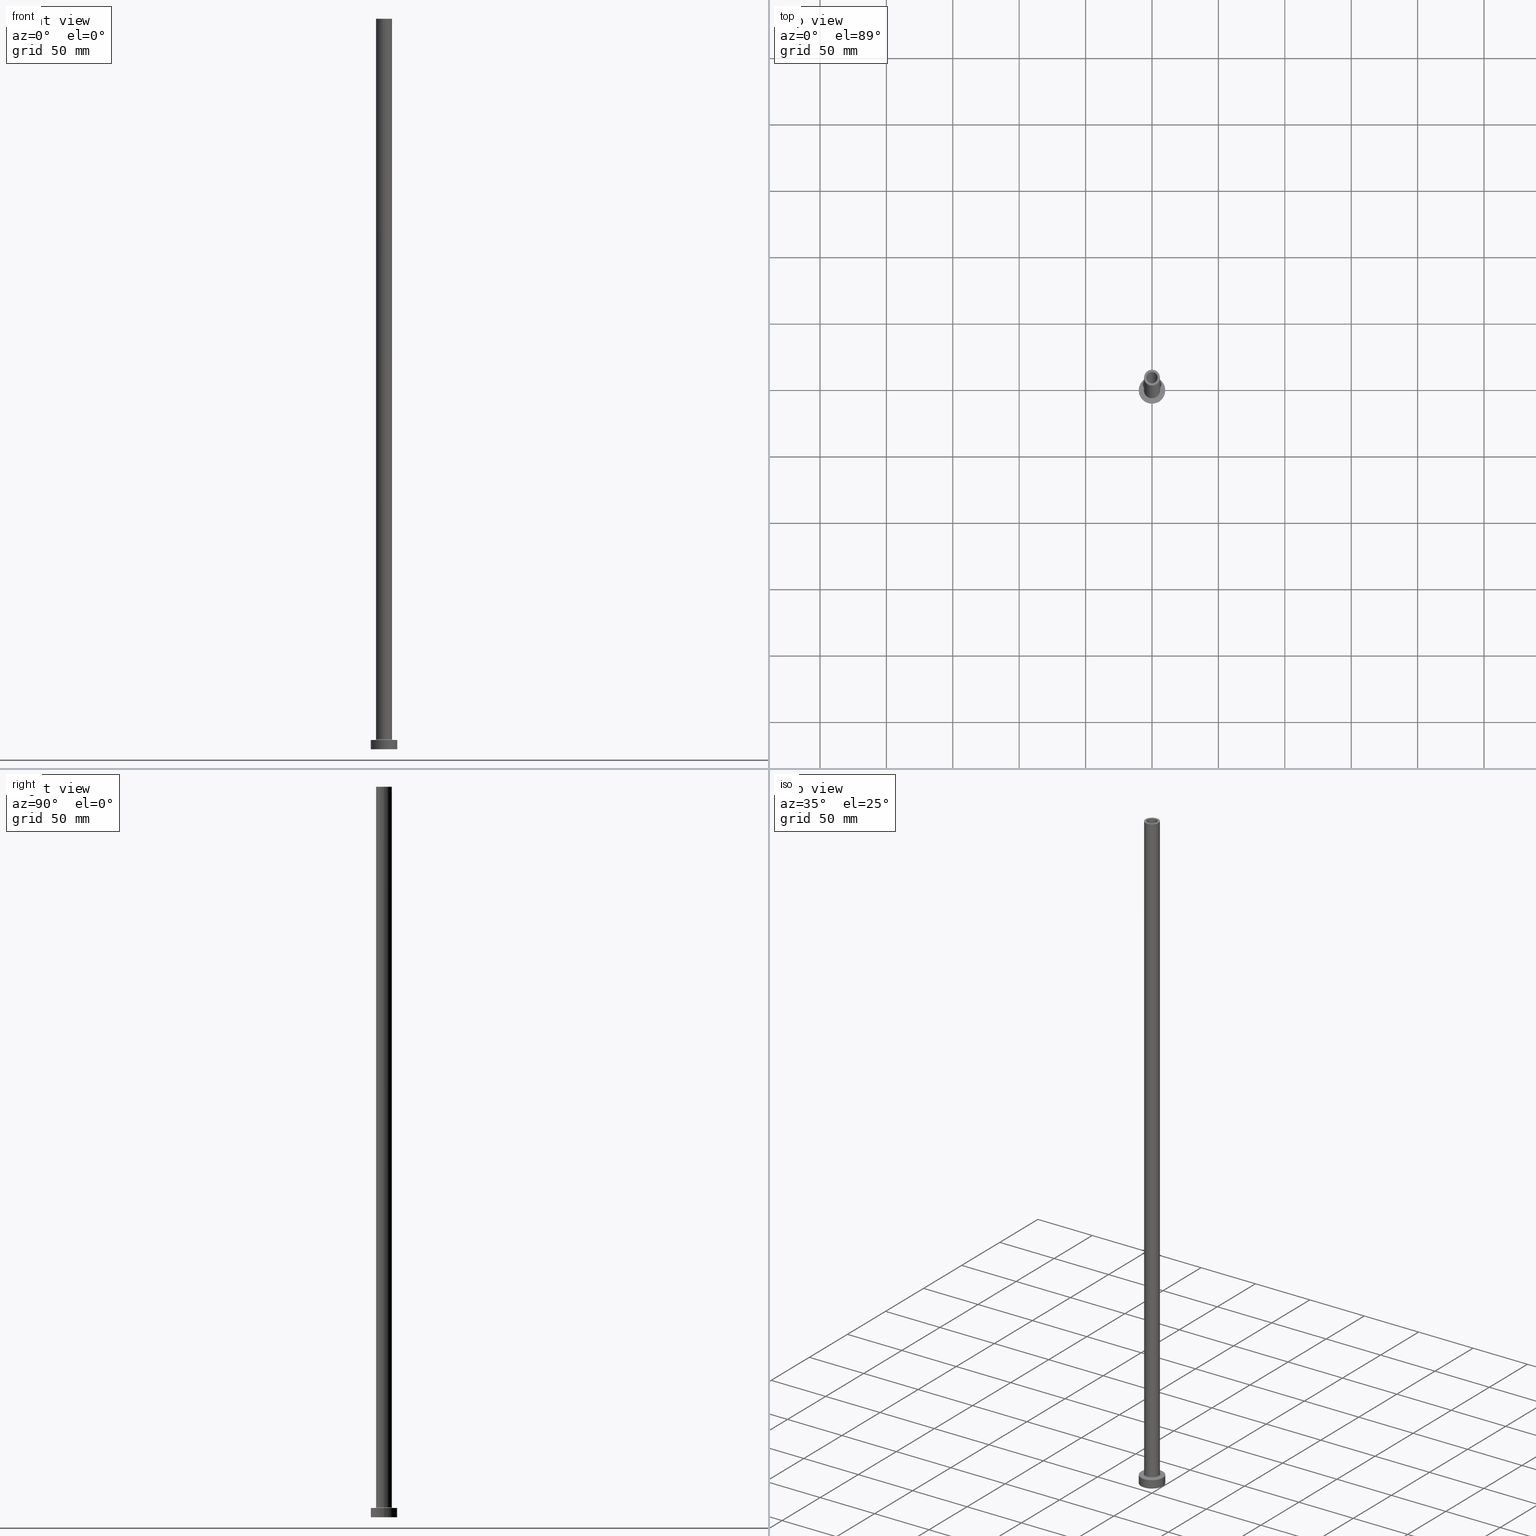
[diagram: canonical four-view strip — front | top / right | iso, engineering-drawing reading convention]
A machine part, canonical four-view strip (front | top / right | iso — engineering-drawing reading convention). The complete STEP part file that produces these views, byte-faithful:
ISO-10303-21;
HEADER;
FILE_DESCRIPTION (( 'STEP AP203' ),
    '1' );
FILE_NAME ('d354.STEP',
    '2023-02-13T11:55:29',
    ( '' ),
    ( '' ),
    'SwSTEP 2.0',
    'SolidWorks 2019',
    '' );
FILE_SCHEMA (( 'CONFIG_CONTROL_DESIGN' ));
ENDSEC;

DATA;
#1 = PRODUCT ( 'd354', 'd354', '', ( #40 ) ) ;
#2 = DIRECTION ( 'NONE',  ( -0.000000000000000000, -0.000000000000000000, -1.000000000000000000 ) ) ;
#3 = EDGE_LOOP ( 'NONE', ( #135, #392 ) ) ;
#4 = CARTESIAN_POINT ( 'NONE',  ( 0.000000000000000000, 0.000000000000000000, 517.4450793488832687 ) ) ;
#5 = CIRCLE ( 'NONE', #401, 4.400000000000000355 ) ;
#6 = EDGE_CURVE ( 'NONE', #89, #350, #354, .T. ) ;
#7 = CIRCLE ( 'NONE', #260, 4.400000000000000355 ) ;
#8 = AXIS2_PLACEMENT_3D ( 'NONE', #66, #104, #270 ) ;
#9 = FACE_BOUND ( 'NONE', #39, .T. ) ;
#10 = CC_DESIGN_PERSON_AND_ORGANIZATION_ASSIGNMENT ( #185, #429, ( #396 ) ) ;
#11 = CALENDAR_DATE ( 2023, 13, 2 ) ;
#12 = DIRECTION ( 'NONE',  ( 0.000000000000000000, 0.000000000000000000, 1.000000000000000000 ) ) ;
#13 = PERSON_AND_ORGANIZATION_ROLE ( 'creator' ) ;
#14 = CARTESIAN_POINT ( 'NONE',  ( -4.400000000000000355, 0.000000000000000000, 517.4450793488832687 ) ) ;
#15 = EDGE_CURVE ( 'NONE', #414, #35, #286, .T. ) ;
#16 = APPLICATION_CONTEXT ( 'configuration controlled 3d designs of mechanical parts and assemblies' ) ;
#17 = DIRECTION ( 'NONE',  ( 0.000000000000000000, 0.000000000000000000, -1.000000000000000000 ) ) ;
#18 = CARTESIAN_POINT ( 'NONE',  ( -4.400000000000000355, 0.000000000000000000, 0.000000000000000000 ) ) ;
#19 = PLANE ( 'NONE',  #349 ) ;
#20 = ADVANCED_FACE ( 'NONE', ( #323 ), #171, .F. ) ;
#21 = DIRECTION ( 'NONE',  ( 0.000000000000000000, 0.000000000000000000, 1.000000000000000000 ) ) ;
#22 = AXIS2_PLACEMENT_3D ( 'NONE', #454, #2, #420 ) ;
#23 = DIRECTION ( 'NONE',  ( 1.000000000000000000, 0.000000000000000000, 0.000000000000000000 ) ) ;
#24 = ORIENTED_EDGE ( 'NONE', *, *, #221, .T. ) ;
#25 = CARTESIAN_POINT ( 'NONE',  ( -4.250000000000000000, 0.000000000000000000, 550.0000000000000000 ) ) ;
#26 = AXIS2_PLACEMENT_3D ( 'NONE', #46, #184, #80 ) ;
#27 = DIRECTION ( 'NONE',  ( 0.000000000000000000, 0.000000000000000000, 1.000000000000000000 ) ) ;
#28 = CIRCLE ( 'NONE', #444, 10.00000000000000000 ) ;
#29 = DIRECTION ( 'NONE',  ( 0.000000000000000000, 0.000000000000000000, 1.000000000000000000 ) ) ;
#30 = EDGE_LOOP ( 'NONE', ( #176, #76, #412, #443 ) ) ;
#31 = CYLINDRICAL_SURFACE ( 'NONE', #261, 4.400000000000000355 ) ;
#32 = VERTEX_POINT ( 'NONE', #283 ) ;
#33 = ADVANCED_FACE ( 'NONE', ( #246 ), #250, .T. ) ;
#34 = LINE ( 'NONE', #232, #205 ) ;
#35 = VERTEX_POINT ( 'NONE', #48 ) ;
#36 = CARTESIAN_POINT ( 'NONE',  ( -4.250000000000000000, 0.000000000000000000, 505.0000000000000000 ) ) ;
#37 = VERTEX_POINT ( 'NONE', #248 ) ;
#38 = DATE_AND_TIME ( #285, #459 ) ;
#39 = EDGE_LOOP ( 'NONE', ( #385, #446 ) ) ;
#40 = MECHANICAL_CONTEXT ( 'NONE', #16, 'mechanical' ) ;
#41 = CIRCLE ( 'NONE', #158, 10.00000000000000000 ) ;
#42 = ORIENTED_EDGE ( 'NONE', *, *, #405, .T. ) ;
#43 = AXIS2_PLACEMENT_3D ( 'NONE', #110, #115, #222 ) ;
#44 = APPROVAL_STATUS ( 'not_yet_approved' ) ;
#45 = FACE_OUTER_BOUND ( 'NONE', #209, .T. ) ;
#46 = CARTESIAN_POINT ( 'NONE',  ( -6.700000000000001066, 8.205133554287267548E-16, 7.700000000000040146 ) ) ;
#47 = SHAPE_DEFINITION_REPRESENTATION ( #51, #332 ) ;
#48 = CARTESIAN_POINT ( 'NONE',  ( 4.250000000000000000, 5.204748896376250699E-16, 505.0000000000000000 ) ) ;
#49 = DIRECTION ( 'NONE',  ( 1.000000000000000000, 0.000000000000000000, -0.000000000000000000 ) ) ;
#50 = CARTESIAN_POINT ( 'NONE',  ( 6.000000000000000888, 7.347880794884120722E-16, 550.0000000000000000 ) ) ;
#51 = PRODUCT_DEFINITION_SHAPE ( 'NONE', 'NONE',  #422 ) ;
#52 = DIRECTION ( 'NONE',  ( 1.000000000000000000, 0.000000000000000000, 0.000000000000000000 ) ) ;
#53 = DIRECTION ( 'NONE',  ( 0.000000000000000000, 0.000000000000000000, 1.000000000000000000 ) ) ;
#54 = LOCAL_TIME ( 12, 55, 29.00000000000000000, #289 ) ;
#55 = EDGE_CURVE ( 'NONE', #151, #233, #430, .T. ) ;
#56 = CARTESIAN_POINT ( 'NONE',  ( -10.00000000000000000, 0.000000000000000000, 7.000000000000000000 ) ) ;
#57 = CARTESIAN_POINT ( 'NONE',  ( 0.000000000000000000, 0.000000000000000000, 0.000000000000000000 ) ) ;
#58 = DIRECTION ( 'NONE',  ( -0.000000000000000000, -0.000000000000000000, -1.000000000000000000 ) ) ;
#59 = ORIENTED_EDGE ( 'NONE', *, *, #103, .F. ) ;
#60 = CIRCLE ( 'NONE', #119, 4.250000000000000000 ) ;
#61 = LINE ( 'NONE', #417, #284 ) ;
#62 = ORIENTED_EDGE ( 'NONE', *, *, #347, .F. ) ;
#63 = ADVANCED_FACE ( 'NONE', ( #357 ), #439, .T. ) ;
#64 = CARTESIAN_POINT ( 'NONE',  ( 6.000000000000000888, 7.347880794884120722E-16, 550.0000000000000000 ) ) ;
#65 = ORIENTED_EDGE ( 'NONE', *, *, #15, .F. ) ;
#66 = CARTESIAN_POINT ( 'NONE',  ( 6.700000000000001066, 0.000000000000000000, 7.700000000000040146 ) ) ;
#67 = ORIENTED_EDGE ( 'NONE', *, *, #55, .F. ) ;
#68 = AXIS2_PLACEMENT_3D ( 'NONE', #365, #447, #88 ) ;
#69 = VECTOR ( 'NONE', #277, 1000.000000000000000 ) ;
#70 = DATE_TIME_ROLE ( 'classification_date' ) ;
#71 = VERTEX_POINT ( 'NONE', #363 ) ;
#72 = DIRECTION ( 'NONE',  ( 0.000000000000000000, 0.000000000000000000, 1.000000000000000000 ) ) ;
#73 = CALENDAR_DATE ( 2023, 13, 2 ) ;
#74 = DATE_AND_TIME ( #358, #333 ) ;
#75 = AXIS2_PLACEMENT_3D ( 'NONE', #228, #335, #293 ) ;
#76 = ORIENTED_EDGE ( 'NONE', *, *, #6, .T. ) ;
#77 = EDGE_CURVE ( 'NONE', #295, #350, #258, .T. ) ;
#78 = DATE_AND_TIME ( #11, #310 ) ;
#79 = DIRECTION ( 'NONE',  ( 1.000000000000000000, 0.000000000000000000, 0.000000000000000000 ) ) ;
#80 = DIRECTION ( 'NONE',  ( -1.000000000000000000, 1.224646799147353454E-16, 0.000000000000000000 ) ) ;
#81 = DIRECTION ( 'NONE',  ( 0.000000000000000000, 0.000000000000000000, 1.000000000000000000 ) ) ;
#82 = AXIS2_PLACEMENT_3D ( 'NONE', #375, #202, #338 ) ;
#83 = APPROVAL ( #217, 'NEUR�EN�' ) ;
#84 = CARTESIAN_POINT ( 'NONE',  ( 0.000000000000000000, 0.000000000000000000, 0.000000000000000000 ) ) ;
#85 = DIRECTION ( 'NONE',  ( 1.000000000000000000, 0.000000000000000000, 0.000000000000000000 ) ) ;
#86 = EDGE_CURVE ( 'NONE', #435, #233, #5, .T. ) ;
#87 = VECTOR ( 'NONE', #183, 1000.000000000000000 ) ;
#88 = DIRECTION ( 'NONE',  ( 1.000000000000000000, 0.000000000000000000, -0.000000000000000000 ) ) ;
#89 = VERTEX_POINT ( 'NONE', #389 ) ;
#90 = CIRCLE ( 'NONE', #415, 4.250000000000000000 ) ;
#91 = ADVANCED_FACE ( 'NONE', ( #9, #45 ), #321, .F. ) ;
#92 = CARTESIAN_POINT ( 'NONE',  ( -4.400000000000000355, 0.000000000000000000, 505.0000000000000000 ) ) ;
#93 =( LENGTH_UNIT ( ) NAMED_UNIT ( * ) SI_UNIT ( .MILLI., .METRE. ) );
#94 = EDGE_LOOP ( 'NONE', ( #197, #421, #42, #236 ) ) ;
#95 = ADVANCED_FACE ( 'NONE', ( #218 ), #361, .F. ) ;
#96 = FACE_OUTER_BOUND ( 'NONE', #309, .T. ) ;
#97 = EDGE_LOOP ( 'NONE', ( #100, #141 ) ) ;
#98 = AXIS2_PLACEMENT_3D ( 'NONE', #238, #308, #382 ) ;
#99 = CYLINDRICAL_SURFACE ( 'NONE', #82, 10.00000000000000000 ) ;
#100 = ORIENTED_EDGE ( 'NONE', *, *, #244, .F. ) ;
#101 = CARTESIAN_POINT ( 'NONE',  ( 0.000000000000000000, 0.000000000000000000, 0.000000000000000000 ) ) ;
#102 = ORIENTED_EDGE ( 'NONE', *, *, #362, .T. ) ;
#103 = EDGE_CURVE ( 'NONE', #304, #71, #41, .T. ) ;
#104 = DIRECTION ( 'NONE',  ( 0.000000000000000000, -1.000000000000000000, 0.000000000000000000 ) ) ;
#105 = ORIENTED_EDGE ( 'NONE', *, *, #395, .F. ) ;
#106 = EDGE_CURVE ( 'NONE', #339, #35, #90, .T. ) ;
#107 = DATE_AND_TIME ( #287, #139 ) ;
#108 = ORIENTED_EDGE ( 'NONE', *, *, #370, .T. ) ;
#109 = PERSON_AND_ORGANIZATION ( #152, #379 ) ;
#110 = CARTESIAN_POINT ( 'NONE',  ( 0.000000000000000000, 0.000000000000000000, 7.000000000000000000 ) ) ;
#111 = CARTESIAN_POINT ( 'NONE',  ( 0.000000000000000000, 0.000000000000000000, 0.000000000000000000 ) ) ;
#112 = CARTESIAN_POINT ( 'NONE',  ( 0.000000000000000000, 0.000000000000000000, 505.0000000000000000 ) ) ;
#113 = APPROVAL_ROLE ( '' ) ;
#114 = CC_DESIGN_APPROVAL ( #296, ( #253 ) ) ;
#115 = DIRECTION ( 'NONE',  ( -0.000000000000000000, -0.000000000000000000, -1.000000000000000000 ) ) ;
#116 = APPLICATION_PROTOCOL_DEFINITION ( 'international standard', 'config_control_design', 1994, #16 ) ;
#117 = CARTESIAN_POINT ( 'NONE',  ( 0.000000000000000000, 0.000000000000000000, 0.000000000000000000 ) ) ;
#118 = PLANE ( 'NONE',  #68 ) ;
#119 = AXIS2_PLACEMENT_3D ( 'NONE', #224, #263, #85 ) ;
#120 = PLANE ( 'NONE',  #449 ) ;
#121 = TOROIDAL_SURFACE ( 'NONE', #427, 6.700000000000001066, 0.6999999999999999556 ) ;
#122 = CARTESIAN_POINT ( 'NONE',  ( 0.000000000000000000, 0.000000000000000000, 550.0000000000000000 ) ) ;
#123 = ORIENTED_EDGE ( 'NONE', *, *, #172, .T. ) ;
#124 = DIRECTION ( 'NONE',  ( 1.000000000000000000, 0.000000000000000000, 0.000000000000000000 ) ) ;
#125 = CC_DESIGN_PERSON_AND_ORGANIZATION_ASSIGNMENT ( #315, #352, ( #1 ) ) ;
#126 = ORIENTED_EDGE ( 'NONE', *, *, #77, .T. ) ;
#127 = CYLINDRICAL_SURFACE ( 'NONE', #166, 10.00000000000000000 ) ;
#128 = AXIS2_PLACEMENT_3D ( 'NONE', #57, #193, #124 ) ;
#129 = AXIS2_PLACEMENT_3D ( 'NONE', #111, #426, #245 ) ;
#130 = CIRCLE ( 'NONE', #8, 0.7000000000000000666 ) ;
#131 = LINE ( 'NONE', #64, #269 ) ;
#132 = VERTEX_POINT ( 'NONE', #353 ) ;
#133 = ADVANCED_FACE ( 'NONE', ( #179, #230 ), #118, .T. ) ;
#134 = DIRECTION ( 'NONE',  ( -0.000000000000000000, -0.000000000000000000, -1.000000000000000000 ) ) ;
#135 = ORIENTED_EDGE ( 'NONE', *, *, #165, .T. ) ;
#136 = PRODUCT_RELATED_PRODUCT_CATEGORY ( 'detail', '', ( #1 ) ) ;
#137 = FACE_OUTER_BOUND ( 'NONE', #143, .T. ) ;
#138 = ORIENTED_EDGE ( 'NONE', *, *, #244, .T. ) ;
#139 = LOCAL_TIME ( 12, 55, 29.00000000000000000, #148 ) ;
#140 = CARTESIAN_POINT ( 'NONE',  ( 4.400000000000000355, 5.388445916248354013E-16, 517.4450793488832687 ) ) ;
#141 = ORIENTED_EDGE ( 'NONE', *, *, #86, .F. ) ;
#142 = DIRECTION ( 'NONE',  ( 1.000000000000000000, 0.000000000000000000, 0.000000000000000000 ) ) ;
#143 = EDGE_LOOP ( 'NONE', ( #400, #190, #455, #206 ) ) ;
#144 = AXIS2_PLACEMENT_3D ( 'NONE', #432, #188, #292 ) ;
#145 = DIRECTION ( 'NONE',  ( 0.000000000000000000, 0.000000000000000000, 1.000000000000000000 ) ) ;
#146 = VECTOR ( 'NONE', #441, 1000.000000000000000 ) ;
#147 = CIRCLE ( 'NONE', #327, 4.250000000000000000 ) ;
#148 = COORDINATED_UNIVERSAL_TIME_OFFSET ( 1, 0, .AHEAD. ) ;
#149 = CARTESIAN_POINT ( 'NONE',  ( 0.000000000000000000, 0.000000000000000000, 0.000000000000000000 ) ) ;
#150 = APPROVAL_DATE_TIME ( #78, #296 ) ;
#151 = VERTEX_POINT ( 'NONE', #92 ) ;
#152 = PERSON ( 'NEUR�EN�', 'NEUR�EN�', 'NEUR�EN�', ('NEUR�EN�'), ('NEUR�EN�'), ('NEUR�EN�') ) ;
#153 = DATE_TIME_ROLE ( 'creation_date' ) ;
#154 = DIRECTION ( 'NONE',  ( -0.000000000000000000, -0.000000000000000000, -1.000000000000000000 ) ) ;
#155 = AXIS2_PLACEMENT_3D ( 'NONE', #442, #226, #23 ) ;
#156 = DIRECTION ( 'NONE',  ( -1.000000000000000000, 0.000000000000000000, 0.000000000000000000 ) ) ;
#157 = FACE_OUTER_BOUND ( 'NONE', #3, .T. ) ;
#158 = AXIS2_PLACEMENT_3D ( 'NONE', #117, #145, #257 ) ;
#159 = DIRECTION ( 'NONE',  ( 1.000000000000000000, 0.000000000000000000, -0.000000000000000000 ) ) ;
#160 = VECTOR ( 'NONE', #213, 1000.000000000000000 ) ;
#161 = CARTESIAN_POINT ( 'NONE',  ( -4.250000000000000000, 0.000000000000000000, 550.0000000000000000 ) ) ;
#162 = CARTESIAN_POINT ( 'NONE',  ( 0.000000000000000000, 0.000000000000000000, 550.0000000000000000 ) ) ;
#163 = CARTESIAN_POINT ( 'NONE',  ( 6.700000000000001066, 0.000000000000000000, 7.000000000000020428 ) ) ;
#164 = FACE_OUTER_BOUND ( 'NONE', #30, .T. ) ;
#165 = EDGE_CURVE ( 'NONE', #132, #312, #456, .T. ) ;
#166 = AXIS2_PLACEMENT_3D ( 'NONE', #410, #191, #331 ) ;
#167 = DIRECTION ( 'NONE',  ( -0.000000000000000000, -0.000000000000000000, -1.000000000000000000 ) ) ;
#168 = VERTEX_POINT ( 'NONE', #56 ) ;
#169 = CARTESIAN_POINT ( 'NONE',  ( 0.000000000000000000, 0.000000000000000000, 7.000000000000000000 ) ) ;
#170 = ORIENTED_EDGE ( 'NONE', *, *, #457, .T. ) ;
#171 = TOROIDAL_SURFACE ( 'NONE', #433, 6.700000000000001066, 0.6999999999999999556 ) ;
#172 = EDGE_CURVE ( 'NONE', #168, #381, #252, .T. ) ;
#173 = LINE ( 'NONE', #411, #237 ) ;
#174 = ORIENTED_EDGE ( 'NONE', *, *, #436, .F. ) ;
#175 = CARTESIAN_POINT ( 'NONE',  ( 0.000000000000000000, 0.000000000000000000, 517.4450793488832687 ) ) ;
#176 = ORIENTED_EDGE ( 'NONE', *, *, #219, .F. ) ;
#177 =( NAMED_UNIT ( * ) SI_UNIT ( $, .STERADIAN. ) SOLID_ANGLE_UNIT ( ) );
#178 = ORIENTED_EDGE ( 'NONE', *, *, #319, .F. ) ;
#179 = FACE_BOUND ( 'NONE', #316, .T. ) ;
#180 = CIRCLE ( 'NONE', #223, 4.400000000000000355 ) ;
#181 = APPROVAL_PERSON_ORGANIZATION ( #282, #296, #320 ) ;
#182 = APPLICATION_PROTOCOL_DEFINITION ( 'international standard', 'config_control_design', 1994, #348 ) ;
#183 = DIRECTION ( 'NONE',  ( 0.000000000000000000, 0.000000000000000000, -1.000000000000000000 ) ) ;
#184 = DIRECTION ( 'NONE',  ( 1.224646799147353207E-16, 1.000000000000000000, -0.000000000000000000 ) ) ;
#185 = PERSON_AND_ORGANIZATION ( #152, #379 ) ;
#186 = CARTESIAN_POINT ( 'NONE',  ( 4.250000000000000000, 5.204748896376250699E-16, 550.0000000000000000 ) ) ;
#187 = CC_DESIGN_APPROVAL ( #255, ( #422 ) ) ;
#188 = DIRECTION ( 'NONE',  ( -0.000000000000000000, -0.000000000000000000, -1.000000000000000000 ) ) ;
#189 = CARTESIAN_POINT ( 'NONE',  ( 0.000000000000000000, 0.000000000000000000, 505.0000000000000000 ) ) ;
#190 = ORIENTED_EDGE ( 'NONE', *, *, #15, .T. ) ;
#191 = DIRECTION ( 'NONE',  ( -0.000000000000000000, -0.000000000000000000, -1.000000000000000000 ) ) ;
#192 = ADVANCED_FACE ( 'NONE', ( #196, #157 ), #19, .T. ) ;
#193 = DIRECTION ( 'NONE',  ( -0.000000000000000000, -0.000000000000000000, -1.000000000000000000 ) ) ;
#194 = APPROVAL_PERSON_ORGANIZATION ( #215, #83, #113 ) ;
#195 = ORIENTED_EDGE ( 'NONE', *, *, #300, .T. ) ;
#196 = FACE_BOUND ( 'NONE', #210, .T. ) ;
#197 = ORIENTED_EDGE ( 'NONE', *, *, #198, .F. ) ;
#198 = EDGE_CURVE ( 'NONE', #312, #132, #337, .T. ) ;
#199 = DIRECTION ( 'NONE',  ( 0.000000000000000000, 0.000000000000000000, -1.000000000000000000 ) ) ;
#200 = AXIS2_PLACEMENT_3D ( 'NONE', #4, #17, #156 ) ;
#201 = CC_DESIGN_PERSON_AND_ORGANIZATION_ASSIGNMENT ( #393, #398, ( #253 ) ) ;
#202 = DIRECTION ( 'NONE',  ( -0.000000000000000000, -0.000000000000000000, -1.000000000000000000 ) ) ;
#203 = AXIS2_PLACEMENT_3D ( 'NONE', #367, #369, #328 ) ;
#204 = ORIENTED_EDGE ( 'NONE', *, *, #440, .F. ) ;
#205 = VECTOR ( 'NONE', #58, 1000.000000000000000 ) ;
#206 = ORIENTED_EDGE ( 'NONE', *, *, #221, .F. ) ;
#207 = CARTESIAN_POINT ( 'NONE',  ( 0.000000000000000000, 0.000000000000000000, 505.0000000000000000 ) ) ;
#208 = ORIENTED_EDGE ( 'NONE', *, *, #55, .T. ) ;
#209 = EDGE_LOOP ( 'NONE', ( #406, #178 ) ) ;
#210 = EDGE_LOOP ( 'NONE', ( #453, #408 ) ) ;
#211 = COORDINATED_UNIVERSAL_TIME_OFFSET ( 1, 0, .AHEAD. ) ;
#212 = DIRECTION ( 'NONE',  ( 1.000000000000000000, 0.000000000000000000, 0.000000000000000000 ) ) ;
#213 = DIRECTION ( 'NONE',  ( 0.000000000000000000, 0.000000000000000000, -1.000000000000000000 ) ) ;
#214 = AXIS2_PLACEMENT_3D ( 'NONE', #341, #413, #234 ) ;
#215 = PERSON_AND_ORGANIZATION ( #152, #379 ) ;
#216 = CARTESIAN_POINT ( 'NONE',  ( 0.000000000000000000, 0.000000000000000000, 7.700000000000040146 ) ) ;
#217 = APPROVAL_STATUS ( 'not_yet_approved' ) ;
#218 = FACE_OUTER_BOUND ( 'NONE', #359, .T. ) ;
#219 = EDGE_CURVE ( 'NONE', #89, #32, #409, .T. ) ;
#220 = AXIS2_PLACEMENT_3D ( 'NONE', #112, #12, #49 ) ;
#221 = EDGE_CURVE ( 'NONE', #243, #339, #402, .T. ) ;
#222 = DIRECTION ( 'NONE',  ( 1.000000000000000000, 0.000000000000000000, 0.000000000000000000 ) ) ;
#223 = AXIS2_PLACEMENT_3D ( 'NONE', #189, #448, #52 ) ;
#224 = CARTESIAN_POINT ( 'NONE',  ( 0.000000000000000000, 0.000000000000000000, 550.0000000000000000 ) ) ;
#225 = DIRECTION ( 'NONE',  ( 1.000000000000000000, 0.000000000000000000, 0.000000000000000000 ) ) ;
#226 = DIRECTION ( 'NONE',  ( 0.000000000000000000, 0.000000000000000000, 1.000000000000000000 ) ) ;
#227 = ORIENTED_EDGE ( 'NONE', *, *, #395, .T. ) ;
#228 = CARTESIAN_POINT ( 'NONE',  ( 0.000000000000000000, 0.000000000000000000, 7.000000000000000000 ) ) ;
#229 = APPROVAL_PERSON_ORGANIZATION ( #322, #255, #291 ) ;
#230 = FACE_OUTER_BOUND ( 'NONE', #278, .T. ) ;
#231 = ADVANCED_FACE ( 'NONE', ( #445 ), #403, .F. ) ;
#232 = CARTESIAN_POINT ( 'NONE',  ( -10.00000000000000000, 0.000000000000000000, 7.000000000000000000 ) ) ;
#233 = VERTEX_POINT ( 'NONE', #18 ) ;
#234 = DIRECTION ( 'NONE',  ( 1.000000000000000000, 0.000000000000000000, 0.000000000000000000 ) ) ;
#235 = CIRCLE ( 'NONE', #203, 4.250000000000000000 ) ;
#236 = ORIENTED_EDGE ( 'NONE', *, *, #397, .F. ) ;
#237 = VECTOR ( 'NONE', #306, 1000.000000000000000 ) ;
#238 = CARTESIAN_POINT ( 'NONE',  ( 0.000000000000000000, 0.000000000000000000, 550.0000000000000000 ) ) ;
#239 = ORIENTED_EDGE ( 'NONE', *, *, #103, .T. ) ;
#240 = DIRECTION ( 'NONE',  ( 0.000000000000000000, 0.000000000000000000, 1.000000000000000000 ) ) ;
#241 = ORIENTED_EDGE ( 'NONE', *, *, #418, .T. ) ;
#242 = DIRECTION ( 'NONE',  ( 1.000000000000000000, 0.000000000000000000, 0.000000000000000000 ) ) ;
#243 = VERTEX_POINT ( 'NONE', #161 ) ;
#244 = EDGE_CURVE ( 'NONE', #233, #435, #317, .T. ) ;
#245 = DIRECTION ( 'NONE',  ( 1.000000000000000000, 0.000000000000000000, 0.000000000000000000 ) ) ;
#246 = FACE_OUTER_BOUND ( 'NONE', #94, .T. ) ;
#247 = SECURITY_CLASSIFICATION_LEVEL ( 'unclassified' ) ;
#248 = CARTESIAN_POINT ( 'NONE',  ( 4.400000000000000355, 5.388445916248354013E-16, 505.0000000000000000 ) ) ;
#249 = APPROVAL_DATE_TIME ( #38, #83 ) ;
#250 = CYLINDRICAL_SURFACE ( 'NONE', #144, 6.000000000000000888 ) ;
#251 = ADVANCED_FACE ( 'NONE', ( #265, #268 ), #120, .F. ) ;
#252 = CIRCLE ( 'NONE', #75, 10.00000000000000000 ) ;
#253 = SECURITY_CLASSIFICATION ( '', '', #247 ) ;
#254 = DIRECTION ( 'NONE',  ( -0.000000000000000000, -0.000000000000000000, -1.000000000000000000 ) ) ;
#255 = APPROVAL ( #431, 'NEUR�EN�' ) ;
#256 = PERSON_AND_ORGANIZATION ( #152, #379 ) ;
#257 = DIRECTION ( 'NONE',  ( 1.000000000000000000, 0.000000000000000000, 0.000000000000000000 ) ) ;
#258 = CIRCLE ( 'NONE', #43, 6.700000000000001066 ) ;
#259 = DIRECTION ( 'NONE',  ( -1.000000000000000000, 0.000000000000000000, 0.000000000000000000 ) ) ;
#260 = AXIS2_PLACEMENT_3D ( 'NONE', #334, #81, #302 ) ;
#261 = AXIS2_PLACEMENT_3D ( 'NONE', #175, #199, #452 ) ;
#262 = DIRECTION ( 'NONE',  ( 1.000000000000000000, 0.000000000000000000, 0.000000000000000000 ) ) ;
#263 = DIRECTION ( 'NONE',  ( 0.000000000000000000, 0.000000000000000000, 1.000000000000000000 ) ) ;
#264 = EDGE_LOOP ( 'NONE', ( #425, #59 ) ) ;
#265 = FACE_BOUND ( 'NONE', #97, .T. ) ;
#266 = ORIENTED_EDGE ( 'NONE', *, *, #6, .F. ) ;
#267 = AXIS2_PLACEMENT_3D ( 'NONE', #301, #53, #225 ) ;
#268 = FACE_OUTER_BOUND ( 'NONE', #264, .T. ) ;
#269 = VECTOR ( 'NONE', #167, 1000.000000000000000 ) ;
#270 = DIRECTION ( 'NONE',  ( 0.000000000000000000, 0.000000000000000000, -1.000000000000000000 ) ) ;
#271 = ORIENTED_EDGE ( 'NONE', *, *, #319, .T. ) ;
#272 = CARTESIAN_POINT ( 'NONE',  ( 10.00000000000000000, 1.224646799147353256E-15, 7.000000000000000000 ) ) ;
#273 = ORIENTED_EDGE ( 'NONE', *, *, #405, .F. ) ;
#274 = EDGE_CURVE ( 'NONE', #243, #414, #235, .T. ) ;
#275 = CYLINDRICAL_SURFACE ( 'NONE', #98, 4.250000000000000000 ) ;
#276 = EDGE_LOOP ( 'NONE', ( #62, #351, #394, #376 ) ) ;
#277 = DIRECTION ( 'NONE',  ( 0.000000000000000000, 0.000000000000000000, -1.000000000000000000 ) ) ;
#278 = EDGE_LOOP ( 'NONE', ( #123, #102 ) ) ;
#279 = FACE_OUTER_BOUND ( 'NONE', #373, .T. ) ;
#280 = EDGE_LOOP ( 'NONE', ( #105, #342, #108, #170 ) ) ;
#281 = MANIFOLD_SOLID_BREP ( 'Odebrat vysunut�m4', #368 ) ;
#282 = PERSON_AND_ORGANIZATION ( #152, #379 ) ;
#283 = CARTESIAN_POINT ( 'NONE',  ( 6.000000000000000888, 7.347880794884120722E-16, 7.700000000000040146 ) ) ;
#284 = VECTOR ( 'NONE', #134, 1000.000000000000000 ) ;
#285 = CALENDAR_DATE ( 2023, 13, 2 ) ;
#286 = LINE ( 'NONE', #186, #87 ) ;
#287 = CALENDAR_DATE ( 2023, 13, 2 ) ;
#288 = DIRECTION ( 'NONE',  ( 0.000000000000000000, 0.000000000000000000, 1.000000000000000000 ) ) ;
#289 = COORDINATED_UNIVERSAL_TIME_OFFSET ( 1, 0, .AHEAD. ) ;
#290 = DIRECTION ( 'NONE',  ( -1.000000000000000000, 0.000000000000000000, 0.000000000000000000 ) ) ;
#291 = APPROVAL_ROLE ( '' ) ;
#292 = DIRECTION ( 'NONE',  ( -1.000000000000000000, 0.000000000000000000, 0.000000000000000000 ) ) ;
#293 = DIRECTION ( 'NONE',  ( 1.000000000000000000, 0.000000000000000000, 0.000000000000000000 ) ) ;
#294 = CARTESIAN_POINT ( 'NONE',  ( 0.000000000000000000, 0.000000000000000000, 550.0000000000000000 ) ) ;
#295 = VERTEX_POINT ( 'NONE', #163 ) ;
#296 = APPROVAL ( #44, 'NEUR�EN�' ) ;
#297 = CIRCLE ( 'NONE', #22, 6.700000000000001066 ) ;
#298 = DIRECTION ( 'NONE',  ( 0.000000000000000000, 0.000000000000000000, 1.000000000000000000 ) ) ;
#299 = ORIENTED_EDGE ( 'NONE', *, *, #458, .T. ) ;
#300 = EDGE_CURVE ( 'NONE', #151, #37, #7, .T. ) ;
#301 = CARTESIAN_POINT ( 'NONE',  ( 0.000000000000000000, 0.000000000000000000, 7.700000000000040146 ) ) ;
#302 = DIRECTION ( 'NONE',  ( 1.000000000000000000, 0.000000000000000000, 0.000000000000000000 ) ) ;
#303 = DIRECTION ( 'NONE',  ( 0.000000000000000000, 0.000000000000000000, 1.000000000000000000 ) ) ;
#304 = VERTEX_POINT ( 'NONE', #330 ) ;
#305 = EDGE_CURVE ( 'NONE', #414, #243, #60, .T. ) ;
#306 = DIRECTION ( 'NONE',  ( -0.000000000000000000, -0.000000000000000000, -1.000000000000000000 ) ) ;
#307 = EDGE_LOOP ( 'NONE', ( #65, #388, #24, #174 ) ) ;
#308 = DIRECTION ( 'NONE',  ( 0.000000000000000000, 0.000000000000000000, -1.000000000000000000 ) ) ;
#309 = EDGE_LOOP ( 'NONE', ( #419, #227, #239, #461 ) ) ;
#310 = LOCAL_TIME ( 12, 55, 29.00000000000000000, #434 ) ;
#311 = CARTESIAN_POINT ( 'NONE',  ( 0.000000000000000000, 0.000000000000000000, 7.700000000000040146 ) ) ;
#312 = VERTEX_POINT ( 'NONE', #50 ) ;
#313 = DATE_AND_TIME ( #73, #54 ) ;
#314 = EDGE_LOOP ( 'NONE', ( #266, #273, #299, #366 ) ) ;
#315 = PERSON_AND_ORGANIZATION ( #152, #379 ) ;
#316 = EDGE_LOOP ( 'NONE', ( #126, #241 ) ) ;
#317 = CIRCLE ( 'NONE', #128, 4.400000000000000355 ) ;
#318 =( GEOMETRIC_REPRESENTATION_CONTEXT ( 3 ) GLOBAL_UNCERTAINTY_ASSIGNED_CONTEXT ( ( #343 ) ) GLOBAL_UNIT_ASSIGNED_CONTEXT ( ( #93, #438, #177 ) ) REPRESENTATION_CONTEXT ( 'NONE', 'WORKASPACE' ) );
#319 = EDGE_CURVE ( 'NONE', #37, #151, #180, .T. ) ;
#320 = APPROVAL_ROLE ( '' ) ;
#321 = PLANE ( 'NONE',  #220 ) ;
#322 = PERSON_AND_ORGANIZATION ( #152, #379 ) ;
#323 = FACE_OUTER_BOUND ( 'NONE', #314, .T. ) ;
#324 = CARTESIAN_POINT ( 'NONE',  ( 0.000000000000000000, 0.000000000000000000, 550.0000000000000000 ) ) ;
#325 = AXIS2_PLACEMENT_3D ( 'NONE', #122, #374, #259 ) ;
#326 = CC_DESIGN_SECURITY_CLASSIFICATION ( #253, ( #396 ) ) ;
#327 = AXIS2_PLACEMENT_3D ( 'NONE', #207, #27, #344 ) ;
#328 = DIRECTION ( 'NONE',  ( 1.000000000000000000, 0.000000000000000000, 0.000000000000000000 ) ) ;
#329 = ADVANCED_FACE ( 'NONE', ( #404 ), #127, .T. ) ;
#330 = CARTESIAN_POINT ( 'NONE',  ( 10.00000000000000000, 1.224646799147353256E-15, 0.000000000000000000 ) ) ;
#331 = DIRECTION ( 'NONE',  ( -1.000000000000000000, 0.000000000000000000, 0.000000000000000000 ) ) ;
#332 = ADVANCED_BREP_SHAPE_REPRESENTATION ( 'd354', ( #281, #129 ), #318 ) ;
#333 = LOCAL_TIME ( 12, 55, 29.00000000000000000, #355 ) ;
#334 = CARTESIAN_POINT ( 'NONE',  ( 0.000000000000000000, 0.000000000000000000, 505.0000000000000000 ) ) ;
#335 = DIRECTION ( 'NONE',  ( 0.000000000000000000, 0.000000000000000000, 1.000000000000000000 ) ) ;
#336 = DESIGN_CONTEXT ( 'detailed design', #348, 'design' ) ;
#337 = CIRCLE ( 'NONE', #155, 6.000000000000000888 ) ;
#338 = DIRECTION ( 'NONE',  ( -1.000000000000000000, 0.000000000000000000, 0.000000000000000000 ) ) ;
#339 = VERTEX_POINT ( 'NONE', #36 ) ;
#340 = ADVANCED_FACE ( 'NONE', ( #164 ), #121, .F. ) ;
#341 = CARTESIAN_POINT ( 'NONE',  ( 0.000000000000000000, 0.000000000000000000, 7.700000000000040146 ) ) ;
#342 = ORIENTED_EDGE ( 'NONE', *, *, #172, .F. ) ;
#343 = UNCERTAINTY_MEASURE_WITH_UNIT (LENGTH_MEASURE( 1.000000000000000082E-05 ), #93, 'distance_accuracy_value', 'NONE');
#344 = DIRECTION ( 'NONE',  ( 1.000000000000000000, 0.000000000000000000, 0.000000000000000000 ) ) ;
#345 = ORIENTED_EDGE ( 'NONE', *, *, #86, .T. ) ;
#346 = CC_DESIGN_PERSON_AND_ORGANIZATION_ASSIGNMENT ( #256, #13, ( #422 ) ) ;
#347 = EDGE_CURVE ( 'NONE', #312, #32, #131, .T. ) ;
#348 = APPLICATION_CONTEXT ( 'configuration controlled 3d designs of mechanical parts and assemblies' ) ;
#349 = AXIS2_PLACEMENT_3D ( 'NONE', #162, #298, #159 ) ;
#350 = VERTEX_POINT ( 'NONE', #424 ) ;
#351 = ORIENTED_EDGE ( 'NONE', *, *, #165, .F. ) ;
#352 = PERSON_AND_ORGANIZATION_ROLE ( 'design_owner' ) ;
#353 = CARTESIAN_POINT ( 'NONE',  ( -6.000000000000000888, 0.000000000000000000, 550.0000000000000000 ) ) ;
#354 = CIRCLE ( 'NONE', #26, 0.7000000000000000666 ) ;
#355 = COORDINATED_UNIVERSAL_TIME_OFFSET ( 1, 0, .AHEAD. ) ;
#356 = CC_DESIGN_DATE_AND_TIME_ASSIGNMENT ( #107, #153, ( #422 ) ) ;
#357 = FACE_OUTER_BOUND ( 'NONE', #276, .T. ) ;
#358 = CALENDAR_DATE ( 2023, 13, 2 ) ;
#359 = EDGE_LOOP ( 'NONE', ( #195, #383, #345, #67 ) ) ;
#360 = PERSON_AND_ORGANIZATION_ROLE ( 'design_supplier' ) ;
#361 = CYLINDRICAL_SURFACE ( 'NONE', #200, 4.400000000000000355 ) ;
#362 = EDGE_CURVE ( 'NONE', #381, #168, #28, .T. ) ;
#363 = CARTESIAN_POINT ( 'NONE',  ( -10.00000000000000000, 0.000000000000000000, 0.000000000000000000 ) ) ;
#364 = AXIS2_PLACEMENT_3D ( 'NONE', #294, #21, #262 ) ;
#365 = CARTESIAN_POINT ( 'NONE',  ( 0.000000000000000000, 0.000000000000000000, 7.000000000000000000 ) ) ;
#366 = ORIENTED_EDGE ( 'NONE', *, *, #418, .F. ) ;
#367 = CARTESIAN_POINT ( 'NONE',  ( 0.000000000000000000, 0.000000000000000000, 550.0000000000000000 ) ) ;
#368 = CLOSED_SHELL ( 'NONE', ( #423, #95, #340, #33, #371, #329, #133, #251, #63, #192, #20, #391, #91, #231 ) ) ;
#369 = DIRECTION ( 'NONE',  ( 0.000000000000000000, 0.000000000000000000, 1.000000000000000000 ) ) ;
#370 = EDGE_CURVE ( 'NONE', #168, #71, #34, .T. ) ;
#371 = ADVANCED_FACE ( 'NONE', ( #96 ), #99, .T. ) ;
#372 = DIRECTION ( 'NONE',  ( 0.000000000000000000, 0.000000000000000000, 1.000000000000000000 ) ) ;
#373 = EDGE_LOOP ( 'NONE', ( #204, #271, #208, #138 ) ) ;
#374 = DIRECTION ( 'NONE',  ( 0.000000000000000000, 0.000000000000000000, -1.000000000000000000 ) ) ;
#375 = CARTESIAN_POINT ( 'NONE',  ( 0.000000000000000000, 0.000000000000000000, 7.000000000000000000 ) ) ;
#376 = ORIENTED_EDGE ( 'NONE', *, *, #219, .T. ) ;
#377 = AXIS2_PLACEMENT_3D ( 'NONE', #324, #154, #290 ) ;
#378 = CC_DESIGN_DATE_AND_TIME_ASSIGNMENT ( #313, #70, ( #253 ) ) ;
#379 = ORGANIZATION ( 'NEUR�EN�', 'NEUR�EN�', '' ) ;
#380 = CARTESIAN_POINT ( 'NONE',  ( 4.250000000000000000, 5.204748896376250699E-16, 550.0000000000000000 ) ) ;
#381 = VERTEX_POINT ( 'NONE', #272 ) ;
#382 = DIRECTION ( 'NONE',  ( -1.000000000000000000, 0.000000000000000000, 0.000000000000000000 ) ) ;
#383 = ORIENTED_EDGE ( 'NONE', *, *, #440, .T. ) ;
#384 = DIRECTION ( 'NONE',  ( 1.000000000000000000, 0.000000000000000000, 0.000000000000000000 ) ) ;
#385 = ORIENTED_EDGE ( 'NONE', *, *, #106, .T. ) ;
#386 = CARTESIAN_POINT ( 'NONE',  ( 4.400000000000000355, 5.388445916248354013E-16, 0.000000000000000000 ) ) ;
#387 = CC_DESIGN_APPROVAL ( #83, ( #396 ) ) ;
#388 = ORIENTED_EDGE ( 'NONE', *, *, #305, .T. ) ;
#389 = CARTESIAN_POINT ( 'NONE',  ( -6.000000000000000888, 0.000000000000000000, 7.700000000000040146 ) ) ;
#390 = APPROVAL_DATE_TIME ( #74, #255 ) ;
#391 = ADVANCED_FACE ( 'NONE', ( #279 ), #31, .F. ) ;
#392 = ORIENTED_EDGE ( 'NONE', *, *, #198, .T. ) ;
#393 = PERSON_AND_ORGANIZATION ( #152, #379 ) ;
#394 = ORIENTED_EDGE ( 'NONE', *, *, #397, .T. ) ;
#395 = EDGE_CURVE ( 'NONE', #381, #304, #61, .T. ) ;
#396 = PRODUCT_DEFINITION_FORMATION_WITH_SPECIFIED_SOURCE ( 'LIBOVOLN�', '', #1, .NOT_KNOWN. ) ;
#397 = EDGE_CURVE ( 'NONE', #132, #89, #173, .T. ) ;
#398 = PERSON_AND_ORGANIZATION_ROLE ( 'classification_officer' ) ;
#399 = DIRECTION ( 'NONE',  ( 1.000000000000000000, 0.000000000000000000, 0.000000000000000000 ) ) ;
#400 = ORIENTED_EDGE ( 'NONE', *, *, #274, .T. ) ;
#401 = AXIS2_PLACEMENT_3D ( 'NONE', #149, #254, #399 ) ;
#402 = LINE ( 'NONE', #25, #146 ) ;
#403 = CYLINDRICAL_SURFACE ( 'NONE', #325, 4.250000000000000000 ) ;
#404 = FACE_OUTER_BOUND ( 'NONE', #280, .T. ) ;
#405 = EDGE_CURVE ( 'NONE', #32, #89, #450, .T. ) ;
#406 = ORIENTED_EDGE ( 'NONE', *, *, #300, .F. ) ;
#407 = DIRECTION ( 'NONE',  ( 1.000000000000000000, 0.000000000000000000, -0.000000000000000000 ) ) ;
#408 = ORIENTED_EDGE ( 'NONE', *, *, #305, .F. ) ;
#409 = CIRCLE ( 'NONE', #267, 6.000000000000000888 ) ;
#410 = CARTESIAN_POINT ( 'NONE',  ( 0.000000000000000000, 0.000000000000000000, 7.000000000000000000 ) ) ;
#411 = CARTESIAN_POINT ( 'NONE',  ( -6.000000000000000888, 0.000000000000000000, 550.0000000000000000 ) ) ;
#412 = ORIENTED_EDGE ( 'NONE', *, *, #77, .F. ) ;
#413 = DIRECTION ( 'NONE',  ( 0.000000000000000000, 0.000000000000000000, 1.000000000000000000 ) ) ;
#414 = VERTEX_POINT ( 'NONE', #380 ) ;
#415 = AXIS2_PLACEMENT_3D ( 'NONE', #428, #72, #212 ) ;
#416 = AXIS2_PLACEMENT_3D ( 'NONE', #101, #240, #384 ) ;
#417 = CARTESIAN_POINT ( 'NONE',  ( 10.00000000000000000, 1.224646799147353256E-15, 7.000000000000000000 ) ) ;
#418 = EDGE_CURVE ( 'NONE', #350, #295, #297, .T. ) ;
#419 = ORIENTED_EDGE ( 'NONE', *, *, #362, .F. ) ;
#420 = DIRECTION ( 'NONE',  ( 1.000000000000000000, 0.000000000000000000, 0.000000000000000000 ) ) ;
#421 = ORIENTED_EDGE ( 'NONE', *, *, #347, .T. ) ;
#422 = PRODUCT_DEFINITION ( 'NEZN�M�', '', #396, #336 ) ;
#423 = ADVANCED_FACE ( 'NONE', ( #137 ), #275, .F. ) ;
#424 = CARTESIAN_POINT ( 'NONE',  ( -6.700000000000001066, 8.205133554287267548E-16, 7.000000000000020428 ) ) ;
#425 = ORIENTED_EDGE ( 'NONE', *, *, #457, .F. ) ;
#426 = DIRECTION ( 'NONE',  ( 0.000000000000000000, 0.000000000000000000, 1.000000000000000000 ) ) ;
#427 = AXIS2_PLACEMENT_3D ( 'NONE', #311, #29, #242 ) ;
#428 = CARTESIAN_POINT ( 'NONE',  ( 0.000000000000000000, 0.000000000000000000, 505.0000000000000000 ) ) ;
#429 = PERSON_AND_ORGANIZATION_ROLE ( 'creator' ) ;
#430 = LINE ( 'NONE', #14, #160 ) ;
#431 = APPROVAL_STATUS ( 'not_yet_approved' ) ;
#432 = CARTESIAN_POINT ( 'NONE',  ( 0.000000000000000000, 0.000000000000000000, 550.0000000000000000 ) ) ;
#433 = AXIS2_PLACEMENT_3D ( 'NONE', #216, #288, #79 ) ;
#434 = COORDINATED_UNIVERSAL_TIME_OFFSET ( 1, 0, .AHEAD. ) ;
#435 = VERTEX_POINT ( 'NONE', #386 ) ;
#436 = EDGE_CURVE ( 'NONE', #35, #339, #147, .T. ) ;
#437 = CIRCLE ( 'NONE', #416, 10.00000000000000000 ) ;
#438 =( NAMED_UNIT ( * ) PLANE_ANGLE_UNIT ( ) SI_UNIT ( $, .RADIAN. ) );
#439 = CYLINDRICAL_SURFACE ( 'NONE', #377, 6.000000000000000888 ) ;
#440 = EDGE_CURVE ( 'NONE', #37, #435, #460, .T. ) ;
#441 = DIRECTION ( 'NONE',  ( 0.000000000000000000, 0.000000000000000000, -1.000000000000000000 ) ) ;
#442 = CARTESIAN_POINT ( 'NONE',  ( 0.000000000000000000, 0.000000000000000000, 550.0000000000000000 ) ) ;
#443 = ORIENTED_EDGE ( 'NONE', *, *, #458, .F. ) ;
#444 = AXIS2_PLACEMENT_3D ( 'NONE', #169, #303, #142 ) ;
#445 = FACE_OUTER_BOUND ( 'NONE', #307, .T. ) ;
#446 = ORIENTED_EDGE ( 'NONE', *, *, #436, .T. ) ;
#447 = DIRECTION ( 'NONE',  ( 0.000000000000000000, 0.000000000000000000, 1.000000000000000000 ) ) ;
#448 = DIRECTION ( 'NONE',  ( 0.000000000000000000, 0.000000000000000000, 1.000000000000000000 ) ) ;
#449 = AXIS2_PLACEMENT_3D ( 'NONE', #84, #372, #407 ) ;
#450 = CIRCLE ( 'NONE', #214, 6.000000000000000888 ) ;
#451 = CC_DESIGN_PERSON_AND_ORGANIZATION_ASSIGNMENT ( #109, #360, ( #396 ) ) ;
#452 = DIRECTION ( 'NONE',  ( -1.000000000000000000, 0.000000000000000000, 0.000000000000000000 ) ) ;
#453 = ORIENTED_EDGE ( 'NONE', *, *, #274, .F. ) ;
#454 = CARTESIAN_POINT ( 'NONE',  ( 0.000000000000000000, 0.000000000000000000, 7.000000000000000000 ) ) ;
#455 = ORIENTED_EDGE ( 'NONE', *, *, #106, .F. ) ;
#456 = CIRCLE ( 'NONE', #364, 6.000000000000000888 ) ;
#457 = EDGE_CURVE ( 'NONE', #71, #304, #437, .T. ) ;
#458 = EDGE_CURVE ( 'NONE', #32, #295, #130, .T. ) ;
#459 = LOCAL_TIME ( 12, 55, 29.00000000000000000, #211 ) ;
#460 = LINE ( 'NONE', #140, #69 ) ;
#461 = ORIENTED_EDGE ( 'NONE', *, *, #370, .F. ) ;
ENDSEC;
END-ISO-10303-21;
